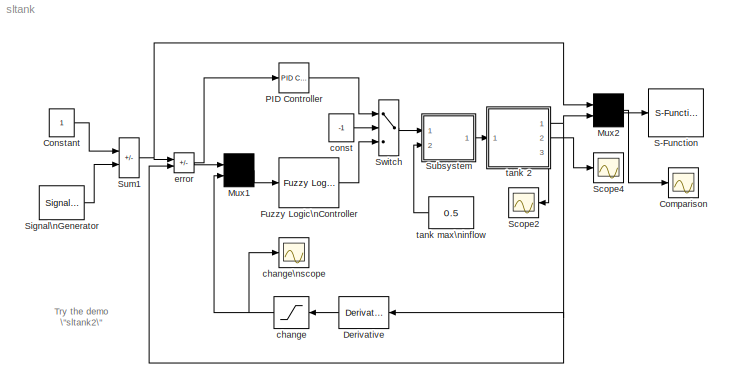
MODEL sltank
KIND model
CONFIG AbsTol = 1e-6
CONFIG FixedStep = auto
CONFIG MaxStep = 0.2
CONFIG MinStep = auto
CONFIG PreLoadFcn = tank=readfis('tank');
CONFIG RelTol = 1e-3
CONFIG Solver = ode45
CONFIG SolverMode = SingleTasking
CONFIG StartTime = 0
CONFIG StopTime = 10000
BLOCK [Scope] Comparison
  DataFormat = Array
  Decimation = 1
  Floating = off
  Grid = on
  LimitDataPoints = on
  MaxDataPoints = 5000
  NumInputPorts = 1
  Ports = [1]
  SampleInput = off
  SampleTime = 0
  SaveName = ScopeData
  SaveToWorkspace = off
  TickLabels = on
  TimeRange = 100
  YMax = 2
  YMin = 0
  ZoomMode = on
BLOCK [Constant] Constant
  Value = 1
  VectorParams1D = on
BLOCK [Derivative] Derivative
  MaskIconFrame = on
  MaskIconOpaque = on
  MaskIconRotate = none
  MaskIconUnits = autoscale
BLOCK [Reference] Fuzzy Logic\nController  REF=fuzblock/Fuzzy Logic \nController  (lib defined in mdl_858b3b3e7478)
  Ports = [1, 1]
  SourceBlock = fuzblock/Fuzzy Logic \nController
  SourceType = FIS
  fis = tank
BLOCK [Mux] Mux1
  DisplayOption = none
  Inputs = 2
  Ports = [2, 1]
BLOCK [Mux] Mux2
  DisplayOption = none
  Inputs = 2
  Ports = [2, 1]
BLOCK [Reference] PID Controller  REF=simulink_extras/Additional\nLinear/PID Controller\n(with Approximate\nDerivative)
  D = 1
  I = 0
  N = 100
  P = 2
  Ports = [1, 1]
  SourceBlock = simulink_extras/Additional\nLinear/PID Controller\n(with Approximate\nDerivative)
  SourceType = PID(2) Controller
BLOCK [S-Function] S-Function
  FunctionName = animtank
  Parameters = 1
  PortCounts = []
  Ports = [1]
  SFunctionModules = ''
BLOCK [Scope] Scope2
  DataFormat = Array
  Decimation = 1
  Floating = off
  Grid = on
  LimitDataPoints = on
  MaskIconFrame = on
  MaskIconOpaque = on
  MaskIconRotate = none
  MaskIconUnits = autoscale
  MaxDataPoints = 5000
  NumInputPorts = 1
  Ports = [1]
  SampleInput = off
  SampleTime = 0
  SaveName = ScopeData
  SaveToWorkspace = off
  TickLabels = on
  TimeRange = 20.000000
  YMax = 2.000000
  YMin = -2.000000
  ZoomMode = on
BLOCK [Scope] Scope4
  DataFormat = Array
  Decimation = 1
  Floating = off
  Grid = on
  LimitDataPoints = on
  MaxDataPoints = 5000
  NumInputPorts = 1
  Ports = [1]
  SampleInput = off
  SampleTime = 0
  SaveName = ScopeData
  SaveToWorkspace = off
  TickLabels = on
  TimeRange = 200.000000
  YMax = 2.000000
  YMin = -2.000000
  ZoomMode = on
BLOCK [SignalGenerator] Signal\nGenerator
  Amplitude = 0.500000
  Frequency = 0.100000
  Units = rad/sec
  VectorParams1D = on
  WaveForm = square
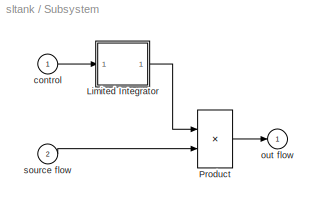
BLOCK [SubSystem] Subsystem
  MaskDescription = Valve
  MaskDisplay = disp('VALVE')
  MaskEnableString = on
  MaskIconFrame = on
  MaskIconOpaque = on
  MaskIconRotate = none
  MaskIconUnits = autoscale
  MaskInitialization = InitialPosition = @1;
  MaskPromptString = Initial position [0=closed 1=open]:
  MaskStyleString = edit
  MaskToolTipString = on
  MaskTunableValueString = on
  MaskType = Valve
  MaskValueString = 0
  MaskVisibilityString = on
  Ports = [2, 1]
  RTWFcnNameOpts = Auto
  RTWFileNameOpts = Auto
  RTWSystemCode = Auto
  ShowPortLabels = off
  TreatAsAtomicUnit = off
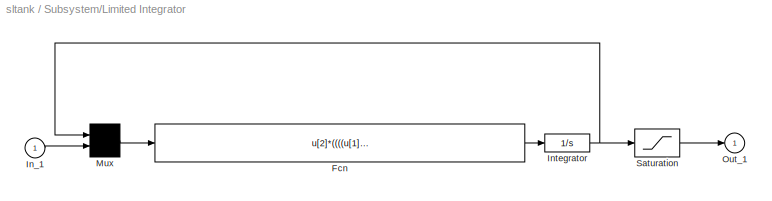
BLOCK [SubSystem] Subsystem/Limited Integrator
  MaskCallbackString = ||
  MaskDescription = Limited integrator
  MaskDisplay = plot(-1,-0.2,3.5,1.2,[0.05,1,2,2.9],[0,0,1,1]);disp(' 1/s    ')
  MaskEnableString = on,on,on
  MaskHelp = Implements a limited integrator with \\nan expression of the form:\\n\\nif(x<=lb and u<0) or (x>=ub and u>0)\\n\\txdot=0<path>=u.
  MaskIconFrame = on
  MaskIconOpaque = on
  MaskIconRotate = none
  MaskIconUnits = autoscale
  MaskInitialization = lb = @1; ub = @2; xi = @3;
  MaskPromptString = Lower bound:|Upper bound:|Initial condition
  MaskStyleString = edit,edit,edit
  MaskToolTipString = on,on,on
  MaskTunableValueString = on,on,on
  MaskType = Limited integrator.
  MaskValueString = 0|1|InitialPosition
  MaskVisibilityString = on,on,on
  Ports = [1, 1]
  RTWFcnNameOpts = Auto
  RTWFileNameOpts = Auto
  RTWSystemCode = Auto
  ShowPortLabels = off
  TreatAsAtomicUnit = off
BLOCK [Fcn] Subsystem/Limited Integrator/Fcn
  Expr = u[2]*((((u[1]>lb)+(u[2]>=0))>0) * (((u[1]<ub)+(u[2]<=0))>0))
BLOCK [Inport] Subsystem/Limited Integrator/In_1
  Interpolate = on
  Port = 1
BLOCK [Integrator] Subsystem/Limited Integrator/Integrator
  AbsoluteTolerance = auto
  ExternalReset = none
  InitialCondition = xi
  InitialConditionSource = internal
  LimitOutput = off
  LowerSaturationLimit = -inf
  Ports = [1, 1]
  ShowSaturationPort = off
  ShowStatePort = off
  UpperSaturationLimit = inf
BLOCK [Mux] Subsystem/Limited Integrator/Mux
  DisplayOption = none
  Inputs = 2
  Ports = [2, 1]
BLOCK [Outport] Subsystem/Limited Integrator/Out_1
  InitialOutput = 0
  OutputWhenDisabled = held
  Port = 1
BLOCK [Saturate] Subsystem/Limited Integrator/Saturation
  LinearizeAsGain = on
  LowerLimit = lb
  UpperLimit = ub
BLOCK [Product] Subsystem/Product
  Inputs = 2
  Multiplication = Element-wise(.*)
  Ports = [2, 1]
  SaturateOnIntegerOverflow = on
BLOCK [Inport] Subsystem/control
  Interpolate = on
  Port = 1
BLOCK [Outport] Subsystem/out flow
  InitialOutput = 0
  OutputWhenDisabled = held
  Port = 1
BLOCK [Inport] Subsystem/source flow
  Interpolate = on
  Port = 2
BLOCK [Sum] Sum1
  IconShape = rectangular
  Inputs = +-
  Ports = [2, 1]
  SaturateOnIntegerOverflow = on
BLOCK [Switch] Switch
  Threshold = 0
BLOCK [Saturate] change
  LinearizeAsGain = on
  LowerLimit = -0.1
  MaskIconFrame = on
  MaskIconOpaque = on
  MaskIconRotate = none
  MaskIconUnits = autoscale
  UpperLimit = 0.1
BLOCK [Scope] change\nscope
  DataFormat = Array
  Decimation = 1
  Floating = off
  Grid = on
  LimitDataPoints = on
  MaxDataPoints = 5000
  NumInputPorts = 1
  Ports = [1]
  SampleInput = off
  SampleTime = 0
  SaveName = ScopeData
  SaveToWorkspace = off
  TickLabels = on
  TimeRange = 20.000000
  YMax = 0.100000
  YMin = -0.100000
  ZoomMode = on
BLOCK [Constant] const
  Value = -1
  VectorParams1D = on
BLOCK [Sum] error
  IconShape = rectangular
  Inputs = +-
  Ports = [2, 1]
  SaturateOnIntegerOverflow = on
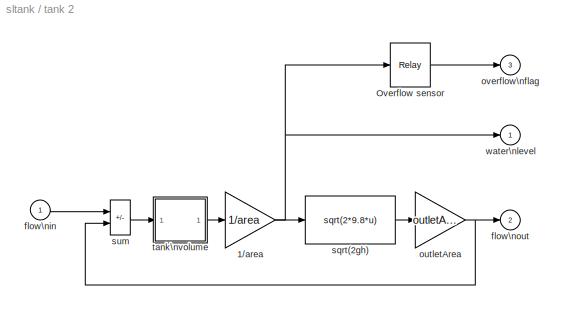
BLOCK [SubSystem] tank 2
  MaskCallbackString = ||||
  MaskDescription = Cylindrical water tank with overflow signal
  MaskDisplay = disp('WATER\\nTANK')
  MaskEnableString = on,on,on,on,on
  MaskIconFrame = on
  MaskIconOpaque = on
  MaskIconRotate = none
  MaskIconUnits = autoscale
  MaskInitialization = ht=@1;area=@2;outletArea=@3;overflowLimit=@4;initialHt=@5;
  MaskPromptString = Height of tank (m):|Bottom area (m^2):|Out pipe crossection (m^2):|Overflow sensor distance from top (m):|Initial level height (m):
  MaskStyleString = edit,edit,edit,edit,edit
  MaskToolTipString = on,on,on,on,on
  MaskTunableValueString = on,on,on,on,on
  MaskType = Water tank
  MaskValueString = 2|1|0.05|0|0.5
  MaskVisibilityString = on,on,on,on,on
  Ports = [1, 3]
  RTWFcnNameOpts = Auto
  RTWFileNameOpts = Auto
  RTWSystemCode = Auto
  ShowPortLabels = off
  TreatAsAtomicUnit = off
BLOCK [Gain] tank 2/1//area
  Gain = 1/area
  Multiplication = Element-wise(K.*u)
  SaturateOnIntegerOverflow = on
BLOCK [Relay] tank 2/Overflow sensor
  OffOutputValue = 0
  OffSwitchValue = ht - overflowLimit
  OnOutputValue = 1
  OnSwitchValue = ht - overflowLimit
BLOCK [Inport] tank 2/flow\nin
  Interpolate = on
  Port = 1
BLOCK [Outport] tank 2/flow\nout
  InitialOutput = 0
  OutputWhenDisabled = held
  Port = 2
BLOCK [Gain] tank 2/outletArea
  Gain = outletArea
  Multiplication = Element-wise(K.*u)
  SaturateOnIntegerOverflow = on
BLOCK [Outport] tank 2/overflow\nflag
  InitialOutput = 0
  OutputWhenDisabled = held
  Port = 3
BLOCK [Fcn] tank 2/sqrt(2gh)
  Expr = sqrt(2*9.8*u)
BLOCK [Sum] tank 2/sum
  IconShape = rectangular
  Inputs = +-
  Ports = [2, 1]
  SaturateOnIntegerOverflow = on
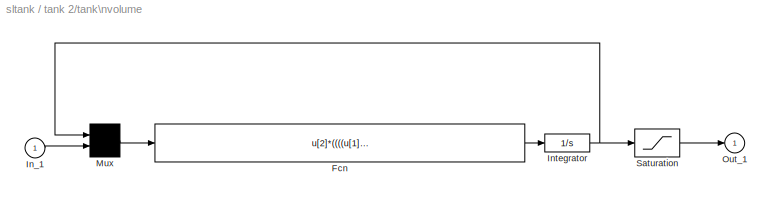
BLOCK [SubSystem] tank 2/tank\nvolume
  MaskCallbackString = ||
  MaskDescription = Limited integrator
  MaskDisplay = plot(-1,-0.2,3.5,1.2,[0.05,1,2,2.9],[0,0,1,1]);disp(' 1/s    ')
  MaskEnableString = on,on,on
  MaskHelp = Implements a limited integrator with \\nan expression of the form:\\n\\nif(x<=lb and u<0) or (x>=ub and u>0)\\n\\txdot=0<path>=u.
  MaskIconFrame = on
  MaskIconOpaque = on
  MaskIconRotate = none
  MaskIconUnits = autoscale
  MaskInitialization = lb = @1; ub = @2; xi = @3;
  MaskPromptString = Lower bound:|Upper bound:|Initial condition
  MaskStyleString = edit,edit,edit
  MaskToolTipString = on,on,on
  MaskTunableValueString = on,on,on
  MaskType = Limited integrator.
  MaskValueString = 0|ht * area|initialHt * area
  MaskVisibilityString = on,on,on
  Ports = [1, 1]
  RTWFcnNameOpts = Auto
  RTWFileNameOpts = Auto
  RTWSystemCode = Auto
  ShowPortLabels = off
  TreatAsAtomicUnit = off
BLOCK [Fcn] tank 2/tank\nvolume/Fcn
  Expr = u[2]*((((u[1]>lb)+(u[2]>=0))>0) * (((u[1]<ub)+(u[2]<=0))>0))
BLOCK [Inport] tank 2/tank\nvolume/In_1
  Interpolate = on
  Port = 1
BLOCK [Integrator] tank 2/tank\nvolume/Integrator
  AbsoluteTolerance = auto
  ExternalReset = none
  InitialCondition = xi
  InitialConditionSource = internal
  LimitOutput = off
  LowerSaturationLimit = -inf
  Ports = [1, 1]
  ShowSaturationPort = off
  ShowStatePort = off
  UpperSaturationLimit = inf
BLOCK [Mux] tank 2/tank\nvolume/Mux
  DisplayOption = none
  Inputs = 2
  Ports = [2, 1]
BLOCK [Outport] tank 2/tank\nvolume/Out_1
  InitialOutput = 0
  OutputWhenDisabled = held
  Port = 1
BLOCK [Saturate] tank 2/tank\nvolume/Saturation
  LinearizeAsGain = on
  LowerLimit = lb
  UpperLimit = ub
BLOCK [Outport] tank 2/water\nlevel
  InitialOutput = 0
  OutputWhenDisabled = held
  Port = 1
BLOCK [Constant] tank max\ninflow
  MaskIconFrame = on
  MaskIconOpaque = on
  MaskIconRotate = none
  MaskIconUnits = autoscale
  Value = 0.5
  VectorParams1D = on
LINE Constant:1 -> Sum1:1
LINE Derivative:1 -> change:1
LINE Fuzzy Logic\nController:1 -> Switch:3
LINE Mux1:1 -> Fuzzy Logic\nController:1
NET Mux2:1 -> Comparison:1, S-Function:1
LINE PID Controller:1 -> Switch:1
LINE Signal\nGenerator:1 -> Sum1:2
LINE Subsystem/Limited Integrator/Fcn:1 -> Subsystem/Limited Integrator/Integrator:1
LINE Subsystem/Limited Integrator/In_1:1 -> Subsystem/Limited Integrator/Mux:2
NET Subsystem/Limited Integrator/Integrator:1 -> Subsystem/Limited Integrator/Mux:1, Subsystem/Limited Integrator/Saturation:1
LINE Subsystem/Limited Integrator/Mux:1 -> Subsystem/Limited Integrator/Fcn:1
LINE Subsystem/Limited Integrator/Saturation:1 -> Subsystem/Limited Integrator/Out_1:1
LINE Subsystem/Limited Integrator:1 -> Subsystem/Product:1
LINE Subsystem/Product:1 -> Subsystem/out flow:1
LINE Subsystem/control:1 -> Subsystem/Limited Integrator:1
LINE Subsystem/source flow:1 -> Subsystem/Product:2
LINE Subsystem:1 -> tank 2:1
NET Sum1:1 -> Mux2:1, error:1
LINE Switch:1 -> Subsystem:1
NET change:1 -> Mux1:2, change\nscope:1
LINE const:1 -> Switch:2
NET error:1 -> Mux1:1, PID Controller:1
NET tank 2/1//area:1 -> tank 2/Overflow sensor:1, tank 2/sqrt(2gh):1, tank 2/water\nlevel:1
LINE tank 2/Overflow sensor:1 -> tank 2/overflow\nflag:1
LINE tank 2/flow\nin:1 -> tank 2/sum:1
NET tank 2/outletArea:1 -> tank 2/flow\nout:1, tank 2/sum:2
LINE tank 2/sqrt(2gh):1 -> tank 2/outletArea:1
LINE tank 2/sum:1 -> tank 2/tank\nvolume:1
LINE tank 2/tank\nvolume/Fcn:1 -> tank 2/tank\nvolume/Integrator:1
LINE tank 2/tank\nvolume/In_1:1 -> tank 2/tank\nvolume/Mux:2
NET tank 2/tank\nvolume/Integrator:1 -> tank 2/tank\nvolume/Mux:1, tank 2/tank\nvolume/Saturation:1
LINE tank 2/tank\nvolume/Mux:1 -> tank 2/tank\nvolume/Fcn:1
LINE tank 2/tank\nvolume/Saturation:1 -> tank 2/tank\nvolume/Out_1:1
LINE tank 2/tank\nvolume:1 -> tank 2/1//area:1
NET tank 2:1 -> Derivative:1, Mux2:2, error:2
LINE tank 2:2 -> Scope4:1
LINE tank 2:3 -> Scope2:1
LINE tank max\ninflow:1 -> Subsystem:2
note: NET lines group one-source signal fan-out (src -> all destinations, sorted); 1:1 wires keep LINE
note: 2 file-system paths scrubbed to <path> (not preserved elsewhere — flat text is the only slx artifact)
